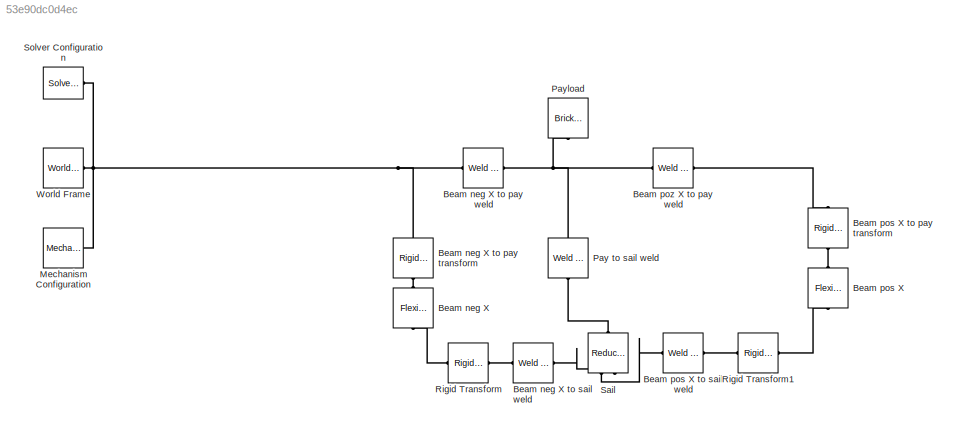
MODEL slx_53e90dc0d4ec
KIND model
CONFIG AbsTol = 1e-3
CONFIG EnableMultiTasking = on
CONFIG FixedStep = auto
CONFIG MaxStep = auto
CONFIG MinStep = auto
CONFIG RelTol = 1e-3
CONFIG SampleTimeConstraint = Unconstrained
CONFIG SolverName = VariableStepAuto
CONFIG StartTime = 0.0
CONFIG StopTime = 10.0
BLOCK [Reference] Beam neg X  REF=sm_lib/Body Elements/Flexible Bodies/Beams/Flexible Cylindrical Beam
  NameLocation = left
  Ports = [0, 0, 0, 0, 0, 1, 1]
  SourceBlock = sm_lib/Body Elements/Flexible Bodies/Beams/Flexible Cylindrical Beam
  SourceProductBaseCode = MS
  SourceType = Flexible Cylindrical Beam
BLOCK [Reference] Beam neg X to pay transform  REF=sm_lib/Frames and
Transforms/Rigid
Transform
  NameLocation = left
  Ports = [0, 0, 0, 0, 0, 1, 1]
  SourceBlock = sm_lib/Frames and\nTransforms/Rigid\nTransform
  SourceProductBaseCode = MS
  SourceType = Rigid\nTransform
BLOCK [Reference] Beam neg X to pay weld  REF=sm_lib/Joints/Weld Joint
  Ports = [0, 0, 0, 0, 0, 1, 1]
  SourceBlock = sm_lib/Joints/Weld Joint
  SourceProductBaseCode = MS
  SourceType = Weld Joint
BLOCK [Reference] Beam neg X to sail weld  REF=sm_lib/Joints/Weld Joint
  Ports = [0, 0, 0, 0, 0, 1, 1]
  SourceBlock = sm_lib/Joints/Weld Joint
  SourceProductBaseCode = MS
  SourceType = Weld Joint
BLOCK [Reference] Beam pos X  REF=sm_lib/Body Elements/Flexible Bodies/Beams/Flexible Cylindrical Beam
  NameLocation = right
  Ports = [0, 0, 0, 0, 0, 1, 1]
  SourceBlock = sm_lib/Body Elements/Flexible Bodies/Beams/Flexible Cylindrical Beam
  SourceProductBaseCode = MS
  SourceType = Flexible Cylindrical Beam
BLOCK [Reference] Beam pos X to pay transform  REF=sm_lib/Frames and
Transforms/Rigid
Transform
  NameLocation = right
  Ports = [0, 0, 0, 0, 0, 1, 1]
  SourceBlock = sm_lib/Frames and\nTransforms/Rigid\nTransform
  SourceProductName = Multibody
  SourceType = Rigid\nTransform
BLOCK [Reference] Beam pos X to sail weld  REF=sm_lib/Joints/Weld Joint
  Ports = [0, 0, 0, 0, 0, 1, 1]
  SourceBlock = sm_lib/Joints/Weld Joint
  SourceProductBaseCode = MS
  SourceType = Weld Joint
BLOCK [Reference] Beam poz X to pay weld  REF=sm_lib/Joints/Weld Joint
  Ports = [0, 0, 0, 0, 0, 1, 1]
  SourceBlock = sm_lib/Joints/Weld Joint
  SourceProductBaseCode = MS
  SourceType = Weld Joint
BLOCK [Reference] Mechanism Configuration  REF=sm_lib/Utilities/Mechanism
Configuration
  Ports = [0, 0, 0, 0, 0, 0, 1]
  SourceBlock = sm_lib/Utilities/Mechanism\nConfiguration
  SourceProductName = Multibody
  SourceType = Mechanism\nConfiguration
BLOCK [Reference] Pay to sail weld  REF=sm_lib/Joints/Weld Joint
  NameLocation = left
  Ports = [0, 0, 0, 0, 0, 1, 1]
  SourceBlock = sm_lib/Joints/Weld Joint
  SourceProductBaseCode = MS
  SourceType = Weld Joint
BLOCK [Reference] Payload  REF=sm_lib/Body Elements/Brick Solid
  NameLocation = left
  Ports = [0, 0, 0, 0, 0, 0, 1]
  SourceBlock = sm_lib/Body Elements/Brick Solid
  SourceProductBaseCode = MS
  SourceType = Brick Solid
BLOCK [Reference] Rigid Transform  REF=sm_lib/Frames and
Transforms/Rigid
Transform
  Ports = [0, 0, 0, 0, 0, 1, 1]
  SourceBlock = sm_lib/Frames and\nTransforms/Rigid\nTransform
  SourceProductBaseCode = MS
  SourceType = Rigid\nTransform
BLOCK [Reference] Rigid Transform1  REF=sm_lib/Frames and
Transforms/Rigid
Transform
  Ports = [0, 0, 0, 0, 0, 1, 1]
  SourceBlock = sm_lib/Frames and\nTransforms/Rigid\nTransform
  SourceProductBaseCode = MS
  SourceType = Rigid\nTransform
BLOCK [Reference] Sail  REF=sm_lib/Body Elements/Flexible Bodies/Reduced Order
Flexible Solid
  NameLocation = left
  Ports = [0, 0, 0, 0, 0, 2, 1]
  SourceBlock = sm_lib/Body Elements/Flexible Bodies/Reduced Order\nFlexible Solid
  SourceProductBaseCode = MS
  SourceType = Reduced Order\nFlexible Solid
BLOCK [Reference] Solver Configuration  REF=nesl_utility/Solver
Configuration
  Ports = [0, 0, 0, 0, 0, 0, 1]
  SourceBlock = nesl_utility/Solver\nConfiguration
  SourceProductName = Utilities
  SourceType = Solver\nConfiguration
BLOCK [Reference] World Frame  REF=sm_lib/Frames and
Transforms/World Frame
  Ports = [0, 0, 0, 0, 0, 0, 1]
  SourceBlock = sm_lib/Frames and\nTransforms/World Frame
  SourceProductName = Multibody
  SourceType = World Frame
PLINE Beam neg X to pay transform:LConn1 -- Beam neg X:LConn1
PNET net1: Beam neg X to pay transform:RConn1 -- Beam neg X to pay weld:LConn1 -- Mechanism Configuration:RConn1 -- Solver Configuration:RConn1 -- World Frame:RConn1
PNET net2: Beam neg X to pay weld:RConn1 -- Beam poz X to pay weld:LConn1 -- Pay to sail weld:LConn1 -- Payload:RConn1
PLINE Beam neg X to sail weld:LConn1 -- Rigid Transform:RConn1
PLINE Beam neg X to sail weld:RConn1 -- Sail:LConn2
PLINE Beam neg X:RConn1 -- Rigid Transform:LConn1
PLINE Beam pos X to pay transform:LConn1 -- Beam pos X:LConn1
PLINE Beam pos X to pay transform:RConn1 -- Beam poz X to pay weld:RConn1
PLINE Beam pos X to sail weld:LConn1 -- Sail:LConn1
PLINE Beam pos X to sail weld:RConn1 -- Rigid Transform1:RConn1
PLINE Beam pos X:RConn1 -- Rigid Transform1:LConn1
PLINE Pay to sail weld:RConn1 -- Sail:RConn1
note: PNET lines group multi-terminal physical nets as a canonical sorted terminal list (undirected conserving connections); 2-terminal nets keep the pairwise PLINE form
